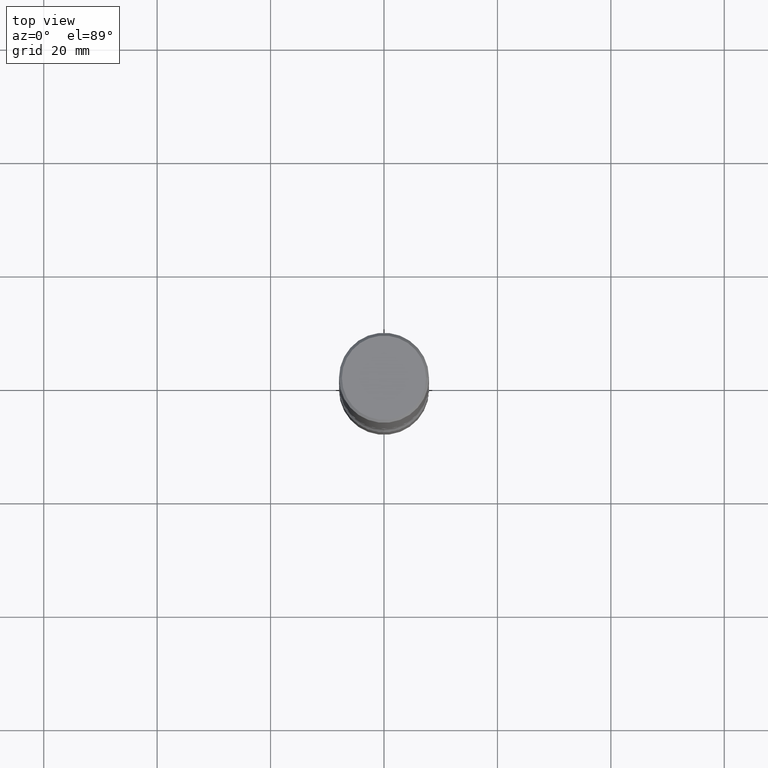
[diagram: clean part render]
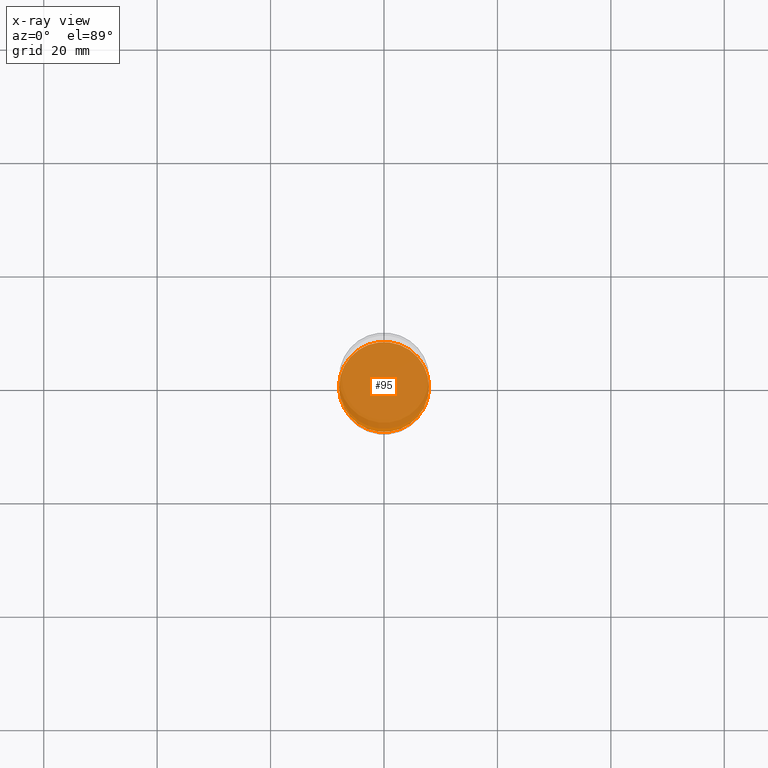
[diagram: x-ray — body ghosted, one internal face saturated and labeled with its STEP entity id]
A machine part, top view, then the same camera in x-ray: the body is ghosted and one INTERNAL B-rep face — a face not visible from any outside direction — is saturated and labeled: STEP entity #95.
In plain terms, the highlighted planar face has unit normal (0, -0, -1).
Its self-contained STEP definition (entity closure, byte-faithful):
#12 = DIRECTION ( 'NONE',  ( -2.445468806185136597E-29, 3.491481338843145583E-15, 1.000000000000000000 ) ) ;
#16 = AXIS2_PLACEMENT_3D ( 'NONE', #446, #17, #171 ) ;
#17 = DIRECTION ( 'NONE',  ( 2.438088387897960049E-29, -3.491481338843145188E-15, -1.000000000000000000 ) ) ;
#71 = EDGE_CURVE ( 'NONE', #322, #243, #320, .T. ) ;
#91 = PLANE ( 'NONE',  #16 ) ;
#95 = ADVANCED_FACE ( 'NONE', ( #349 ), #91, .F. ) ;
#114 = DIRECTION ( 'NONE',  ( -2.445468806185136597E-29, 3.491481338843145583E-15, 1.000000000000000000 ) ) ;
#133 = CARTESIAN_POINT ( 'NONE',  ( 9.170508023194261117E-29, -1.309305502066179584E-14, -3.749999999999999556 ) ) ;
#137 = CIRCLE ( 'NONE', #242, 0.3125000000000001665 ) ;
#171 = DIRECTION ( 'NONE',  ( -1.000000000000000000, 6.982962677686265922E-15, -4.876176775795935793E-29 ) ) ;
#232 = CARTESIAN_POINT ( 'NONE',  ( 0.3125000000000001665, -1.527523085743875418E-14, -3.749999999999999556 ) ) ;
#241 = ORIENTED_EDGE ( 'NONE', *, *, #71, .T. ) ;
#242 = AXIS2_PLACEMENT_3D ( 'NONE', #552, #114, #291 ) ;
#243 = VERTEX_POINT ( 'NONE', #488 ) ;
#291 = DIRECTION ( 'NONE',  ( 1.000000000000000000, -6.982962677686265133E-15, 0.000000000000000000 ) ) ;
#301 = DIRECTION ( 'NONE',  ( 1.000000000000000000, -6.982962677686265133E-15, 0.000000000000000000 ) ) ;
#320 = CIRCLE ( 'NONE', #388, 0.3125000000000001665 ) ;
#322 = VERTEX_POINT ( 'NONE', #232 ) ;
#349 = FACE_OUTER_BOUND ( 'NONE', #424, .T. ) ;
#371 = ORIENTED_EDGE ( 'NONE', *, *, #452, .T. ) ;
#388 = AXIS2_PLACEMENT_3D ( 'NONE', #133, #12, #301 ) ;
#424 = EDGE_LOOP ( 'NONE', ( #241, #371 ) ) ;
#446 = CARTESIAN_POINT ( 'NONE',  ( 9.170508023194261117E-29, -1.309305502066179584E-14, -3.749999999999999556 ) ) ;
#452 = EDGE_CURVE ( 'NONE', #243, #322, #137, .T. ) ;
#488 = CARTESIAN_POINT ( 'NONE',  ( -0.3125000000000001665, -1.272309408099834754E-14, -3.749999999999999556 ) ) ;
#552 = CARTESIAN_POINT ( 'NONE',  ( 9.170508023194261117E-29, -1.309305502066179584E-14, -3.749999999999999556 ) ) ;